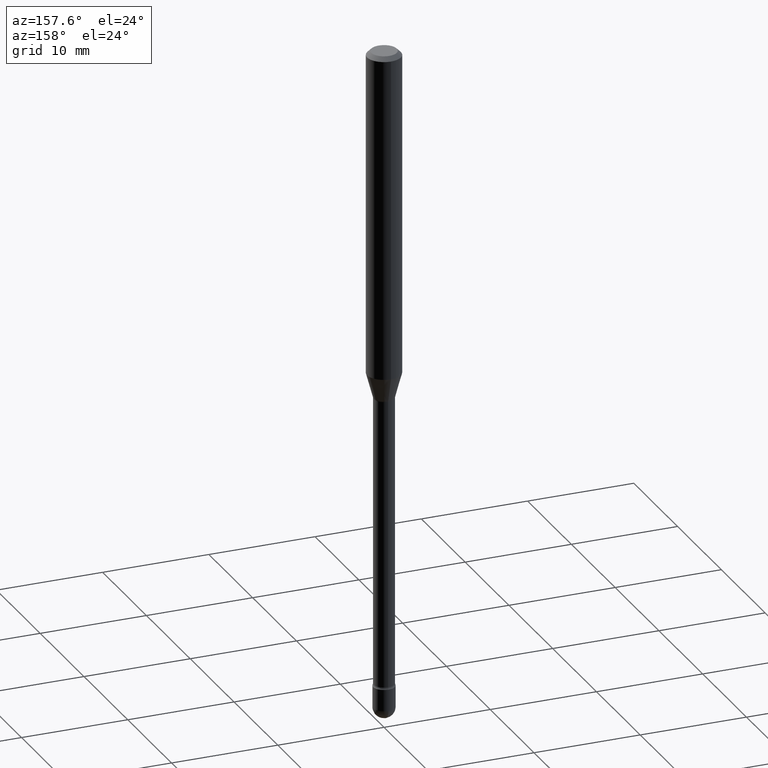
[diagram: clean part render]
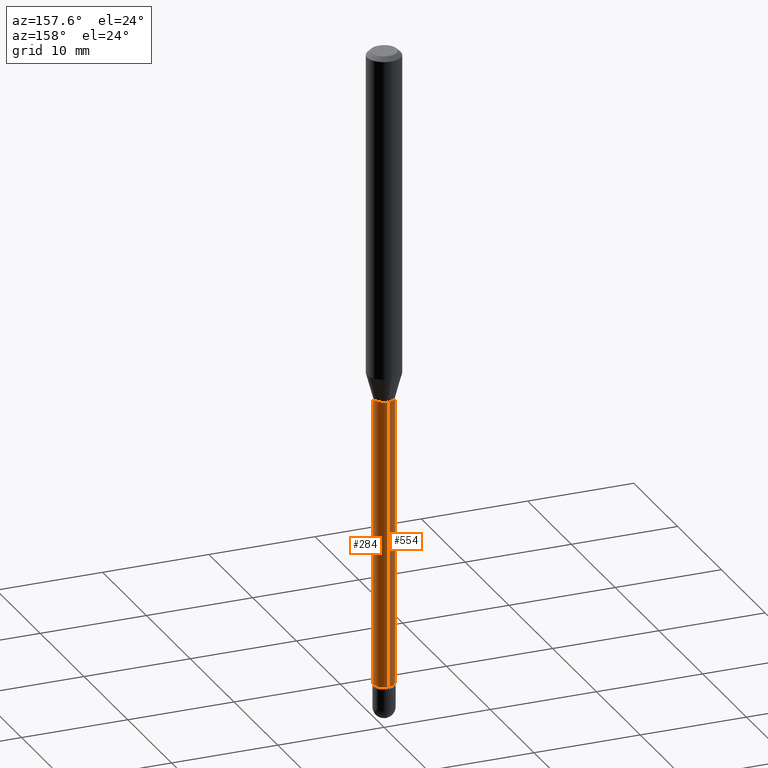
[diagram: same view with one multi-face feature highlighted, each face labeled with its STEP entity id]
A machine part, auxiliary view. The highlighted faces form ONE feature: a constant-radius fillet chain: 2 tangent blend faces with common blend radius 0.955 mm. The faces share edges in the B-rep.
Their STEP definitions:
[1] entity #284 (Cylinder):
#41 = EDGE_CURVE ( 'NONE', #441, #431, #262, .T. ) ;
#44 = VERTEX_POINT ( 'NONE', #180 ) ;
#45 = CARTESIAN_POINT ( 'NONE',  ( -2.625593966809718021E-16, -0.03760000000000455339, -1.301974787463811456 ) ) ;
#55 = CARTESIAN_POINT ( 'NONE',  ( 2.671640686458560068E-16, 0.03759999999999545650, -1.301974787463811456 ) ) ;
#58 = DIRECTION ( 'NONE',  ( -2.445460948409306855E-29, 3.491492591625370773E-15, 1.000000000000000000 ) ) ;
#59 = EDGE_CURVE ( 'NONE', #44, #512, #94, .T. ) ;
#64 = DIRECTION ( 'NONE',  ( -6.982962677686267499E-15, -1.000000000000000000, 3.491492591625371956E-15 ) ) ;
#66 = DIRECTION ( 'NONE',  ( -2.445460948409306574E-29, 3.491492591625370773E-15, 1.000000000000000000 ) ) ;
#94 = CIRCLE ( 'NONE', #145, 0.03760000000000011250 ) ;
#95 = DIRECTION ( 'NONE',  ( -2.445460948409306574E-29, 3.491492591625370773E-15, 1.000000000000000000 ) ) ;
#99 = LINE ( 'NONE', #288, #280 ) ;
#107 = EDGE_CURVE ( 'NONE', #44, #441, #99, .T. ) ;
#112 = FACE_OUTER_BOUND ( 'NONE', #473, .T. ) ;
#145 = AXIS2_PLACEMENT_3D ( 'NONE', #153, #95, #358 ) ;
#153 = CARTESIAN_POINT ( 'NONE',  ( 5.800293949478600504E-29, -8.281335822200333185E-15, -2.371861204020250025 ) ) ;
#158 = CARTESIAN_POINT ( 'NONE',  ( 2.671640686457980748E-16, 0.03760000000000005699, 3.467932774461318563E-16 ) ) ;
#169 = ORIENTED_EDGE ( 'NONE', *, *, #107, .F. ) ;
#180 = CARTESIAN_POINT ( 'NONE',  ( -2.625593966809464107E-16, -0.03760000000000839754, -2.371861204020250025 ) ) ;
#193 = CYLINDRICAL_SURFACE ( 'NONE', #486, 0.03760000000000005699 ) ;
#204 = LINE ( 'NONE', #158, #465 ) ;
#205 = EDGE_CURVE ( 'NONE', #512, #431, #204, .T. ) ;
#262 = CIRCLE ( 'NONE', #364, 0.03760000000000000842 ) ;
#274 = ORIENTED_EDGE ( 'NONE', *, *, #205, .T. ) ;
#280 = VECTOR ( 'NONE', #58, 39.37007874015748143 ) ;
#284 = ADVANCED_FACE ( 'NONE', ( #112 ), #193, .T. ) ;
#288 = CARTESIAN_POINT ( 'NONE',  ( -2.625593966810040468E-16, -0.03760000000000005699, 6.093535203363602208E-16 ) ) ;
#289 = DIRECTION ( 'NONE',  ( -6.982962677686265922E-15, -1.000000000000000000, 0.000000000000000000 ) ) ;
#335 = DIRECTION ( 'NONE',  ( -2.445460948409306855E-29, 3.491492591625370773E-15, 1.000000000000000000 ) ) ;
#358 = DIRECTION ( 'NONE',  ( -6.982962677686265922E-15, -1.000000000000000000, 0.000000000000000000 ) ) ;
#364 = AXIS2_PLACEMENT_3D ( 'NONE', #446, #66, #289 ) ;
#412 = ORIENTED_EDGE ( 'NONE', *, *, #41, .F. ) ;
#431 = VERTEX_POINT ( 'NONE', #55 ) ;
#441 = VERTEX_POINT ( 'NONE', #45 ) ;
#446 = CARTESIAN_POINT ( 'NONE',  ( 3.183928498556257477E-29, -4.545835324912914272E-15, -1.301974787463811456 ) ) ;
#449 = CARTESIAN_POINT ( 'NONE',  ( -1.169113584055446105E-44, 1.669184350826100908E-30, 4.780733988912460139E-16 ) ) ;
#465 = VECTOR ( 'NONE', #335, 39.37007874015748143 ) ;
#466 = ORIENTED_EDGE ( 'NONE', *, *, #59, .T. ) ;
#473 = EDGE_LOOP ( 'NONE', ( #466, #274, #412, #169 ) ) ;
#486 = AXIS2_PLACEMENT_3D ( 'NONE', #449, #535, #64 ) ;
#512 = VERTEX_POINT ( 'NONE', #553 ) ;
#535 = DIRECTION ( 'NONE',  ( -2.445460948409306574E-29, 3.491492591625370773E-15, 1.000000000000000000 ) ) ;
#553 = CARTESIAN_POINT ( 'NONE',  ( 2.756905814749774039E-16, 0.03759999999999183440, -2.371861204020250025 ) ) ;
[2] entity #554 (Cylinder):
#22 = DIRECTION ( 'NONE',  ( -6.982962677686265922E-15, -1.000000000000000000, 0.000000000000000000 ) ) ;
#27 = AXIS2_PLACEMENT_3D ( 'NONE', #257, #166, #342 ) ;
#33 = CYLINDRICAL_SURFACE ( 'NONE', #196, 0.03760000000000005699 ) ;
#44 = VERTEX_POINT ( 'NONE', #180 ) ;
#45 = CARTESIAN_POINT ( 'NONE',  ( -2.625593966809718021E-16, -0.03760000000000455339, -1.301974787463811456 ) ) ;
#54 = ORIENTED_EDGE ( 'NONE', *, *, #371, .T. ) ;
#55 = CARTESIAN_POINT ( 'NONE',  ( 2.671640686458560068E-16, 0.03759999999999545650, -1.301974787463811456 ) ) ;
#58 = DIRECTION ( 'NONE',  ( -2.445460948409306855E-29, 3.491492591625370773E-15, 1.000000000000000000 ) ) ;
#99 = LINE ( 'NONE', #288, #280 ) ;
#107 = EDGE_CURVE ( 'NONE', #44, #441, #99, .T. ) ;
#142 = DIRECTION ( 'NONE',  ( -2.445460948409306574E-29, 3.491492591625370773E-15, 1.000000000000000000 ) ) ;
#150 = FACE_OUTER_BOUND ( 'NONE', #279, .T. ) ;
#158 = CARTESIAN_POINT ( 'NONE',  ( 2.671640686457980748E-16, 0.03760000000000005699, 3.467932774461318563E-16 ) ) ;
#166 = DIRECTION ( 'NONE',  ( -2.445460948409306574E-29, 3.491492591625370773E-15, 1.000000000000000000 ) ) ;
#178 = CIRCLE ( 'NONE', #27, 0.03760000000000011250 ) ;
#180 = CARTESIAN_POINT ( 'NONE',  ( -2.625593966809464107E-16, -0.03760000000000839754, -2.371861204020250025 ) ) ;
#196 = AXIS2_PLACEMENT_3D ( 'NONE', #357, #142, #219 ) ;
#197 = EDGE_CURVE ( 'NONE', #431, #441, #228, .T. ) ;
#204 = LINE ( 'NONE', #158, #465 ) ;
#205 = EDGE_CURVE ( 'NONE', #512, #431, #204, .T. ) ;
#217 = ORIENTED_EDGE ( 'NONE', *, *, #205, .F. ) ;
#219 = DIRECTION ( 'NONE',  ( -6.982962677686267499E-15, -1.000000000000000000, 3.491492591625371956E-15 ) ) ;
#228 = CIRCLE ( 'NONE', #344, 0.03760000000000000842 ) ;
#257 = CARTESIAN_POINT ( 'NONE',  ( 5.800293949478600504E-29, -8.281335822200333185E-15, -2.371861204020250025 ) ) ;
#279 = EDGE_LOOP ( 'NONE', ( #217, #54, #398, #444 ) ) ;
#280 = VECTOR ( 'NONE', #58, 39.37007874015748143 ) ;
#288 = CARTESIAN_POINT ( 'NONE',  ( -2.625593966810040468E-16, -0.03760000000000005699, 6.093535203363602208E-16 ) ) ;
#335 = DIRECTION ( 'NONE',  ( -2.445460948409306855E-29, 3.491492591625370773E-15, 1.000000000000000000 ) ) ;
#342 = DIRECTION ( 'NONE',  ( -6.982962677686265922E-15, -1.000000000000000000, 0.000000000000000000 ) ) ;
#344 = AXIS2_PLACEMENT_3D ( 'NONE', #537, #538, #22 ) ;
#357 = CARTESIAN_POINT ( 'NONE',  ( -1.169113584055446105E-44, 1.669184350826100908E-30, 4.780733988912460139E-16 ) ) ;
#371 = EDGE_CURVE ( 'NONE', #512, #44, #178, .T. ) ;
#398 = ORIENTED_EDGE ( 'NONE', *, *, #107, .T. ) ;
#431 = VERTEX_POINT ( 'NONE', #55 ) ;
#441 = VERTEX_POINT ( 'NONE', #45 ) ;
#444 = ORIENTED_EDGE ( 'NONE', *, *, #197, .F. ) ;
#465 = VECTOR ( 'NONE', #335, 39.37007874015748143 ) ;
#512 = VERTEX_POINT ( 'NONE', #553 ) ;
#537 = CARTESIAN_POINT ( 'NONE',  ( 3.183928498556257477E-29, -4.545835324912914272E-15, -1.301974787463811456 ) ) ;
#538 = DIRECTION ( 'NONE',  ( -2.445460948409306574E-29, 3.491492591625370773E-15, 1.000000000000000000 ) ) ;
#553 = CARTESIAN_POINT ( 'NONE',  ( 2.756905814749774039E-16, 0.03759999999999183440, -2.371861204020250025 ) ) ;
#554 = ADVANCED_FACE ( 'NONE', ( #150 ), #33, .T. ) ;